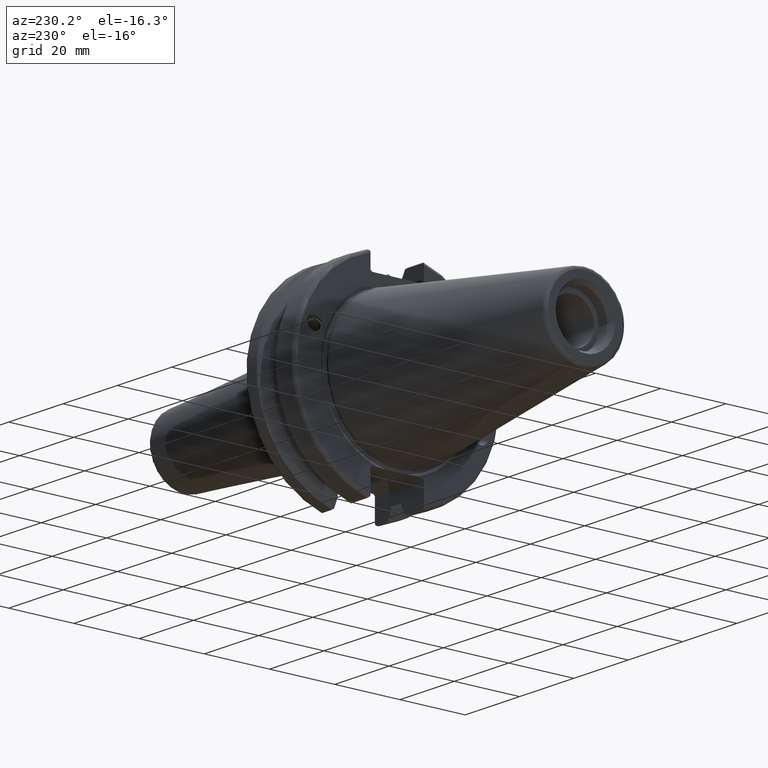
[diagram: clean part render]
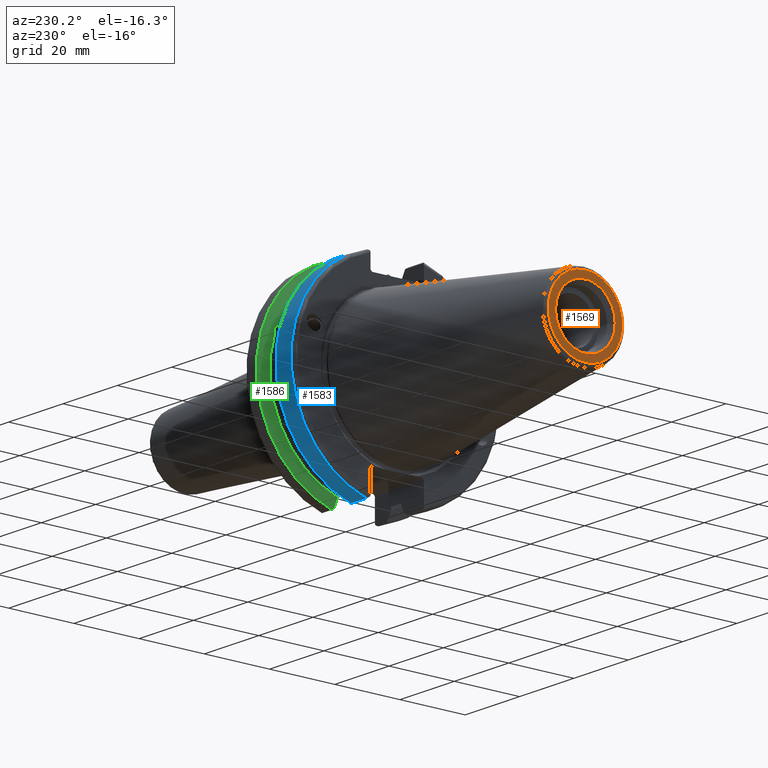
[diagram: same view with three faces highlighted in distinct colors, each labeled with its STEP entity id]
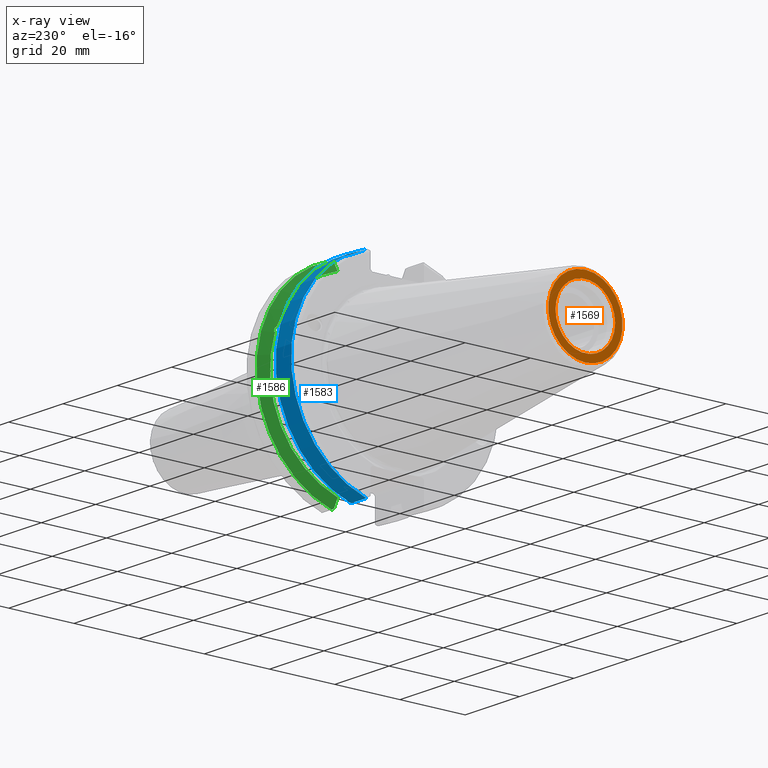
[diagram: x-ray of the same camera — body ghosted, the three highlighted faces saturated]
A machine part, auxiliary view with three faces highlighted in distinct colors.
The next image is the same camera in x-ray (body ghosted, the three faces saturated) — at least one of them is partly hidden behind the body in this view.
Their STEP definitions:

[orange] entity #1569 — the highlighted planar face has unit normal (-1, 0, 0).
#122=FACE_BOUND('',#527,.T.);
#146=PLANE('',#1755);
#425=FACE_OUTER_BOUND('',#526,.T.);
#526=EDGE_LOOP('',(#1351));
#527=EDGE_LOOP('',(#1352));
#619=CIRCLE('',#1754,11.4071305970304);
#620=CIRCLE('',#1756,9.15);
#776=VERTEX_POINT('',#2953);
#777=VERTEX_POINT('',#2957);
#986=EDGE_CURVE('',#776,#776,#619,.T.);
#987=EDGE_CURVE('',#777,#777,#620,.T.);
#1351=ORIENTED_EDGE('',*,*,#986,.F.);
#1352=ORIENTED_EDGE('',*,*,#987,.T.);
#1569=ADVANCED_FACE('',(#425,#122),#146,.T.);
#1754=AXIS2_PLACEMENT_3D('',#2955,#2140,#2141);
#1755=AXIS2_PLACEMENT_3D('',#2956,#2142,#2143);
#1756=AXIS2_PLACEMENT_3D('',#2958,#2144,#2145);
#2140=DIRECTION('center_axis',(1.,0.,0.));
#2141=DIRECTION('ref_axis',(0.,-1.,1.83697019872103E-16));
#2142=DIRECTION('center_axis',(-1.,0.,0.));
#2143=DIRECTION('ref_axis',(0.,0.,1.));
#2144=DIRECTION('center_axis',(1.,0.,0.));
#2145=DIRECTION('ref_axis',(0.,0.,-1.));
#2953=CARTESIAN_POINT('',(-68.25,-1.39697059731091E-15,11.4071305970304));
#2955=CARTESIAN_POINT('Origin',(-68.25,0.,0.));
#2956=CARTESIAN_POINT('Origin',(-68.25,12.271875,0.));
#2957=CARTESIAN_POINT('',(-68.25,-9.15,-1.12055182121983E-15));
#2958=CARTESIAN_POINT('Origin',(-68.25,0.,0.));

[blue] entity #1583 — the highlighted cylindrical surface (partial cylindrical patch) has radius 31.75 mm, axis along (1, 0, 0).
#104=CYLINDRICAL_SURFACE('',#1772,31.75);
#237=LINE('',#2947,#333);
#253=LINE('',#3009,#349);
#333=VECTOR('',#2131,10.);
#349=VECTOR('',#2191,10.);
#439=FACE_OUTER_BOUND('',#541,.T.);
#541=EDGE_LOOP('',(#1418,#1419,#1420,#1421));
#599=CIRCLE('',#1710,31.75);
#613=CIRCLE('',#1745,31.75);
#722=VERTEX_POINT('',#2682);
#723=VERTEX_POINT('',#2686);
#764=VERTEX_POINT('',#2902);
#765=VERTEX_POINT('',#2911);
#906=EDGE_CURVE('',#722,#723,#599,.T.);
#969=EDGE_CURVE('',#764,#765,#613,.T.);
#982=EDGE_CURVE('',#765,#722,#237,.T.);
#1009=EDGE_CURVE('',#723,#764,#253,.T.);
#1418=ORIENTED_EDGE('',*,*,#969,.F.);
#1419=ORIENTED_EDGE('',*,*,#1009,.F.);
#1420=ORIENTED_EDGE('',*,*,#906,.F.);
#1421=ORIENTED_EDGE('',*,*,#982,.F.);
#1583=ADVANCED_FACE('',(#439),#104,.T.);
#1710=AXIS2_PLACEMENT_3D('',#2687,#2017,#2018);
#1745=AXIS2_PLACEMENT_3D('',#2912,#2113,#2114);
#1772=AXIS2_PLACEMENT_3D('',#3010,#2192,#2193);
#2017=DIRECTION('center_axis',(1.,0.,0.));
#2018=DIRECTION('ref_axis',(0.,0.,-1.));
#2113=DIRECTION('center_axis',(-1.,0.,0.));
#2114=DIRECTION('ref_axis',(0.,1.,1.60812264967664E-16));
#2131=DIRECTION('',(1.,0.,0.));
#2191=DIRECTION('',(-1.,0.,0.));
#2192=DIRECTION('center_axis',(1.,0.,0.));
#2193=DIRECTION('ref_axis',(0.,1.,0.));
#2682=CARTESIAN_POINT('',(7.64983323092436,8.67204822802685,-30.5427254764662));
#2686=CARTESIAN_POINT('',(7.64983323092436,8.67204822802685,30.5427254764662));
#2687=CARTESIAN_POINT('Origin',(7.64983323092436,0.,0.));
#2902=CARTESIAN_POINT('',(2.,8.67204822802685,30.5427254764662));
#2911=CARTESIAN_POINT('',(2.,8.67204822802685,-30.5427254764662));
#2912=CARTESIAN_POINT('Origin',(2.,0.,0.));
#2947=CARTESIAN_POINT('',(4.32491661546218,8.67204822802685,-30.5427254764662));
#3009=CARTESIAN_POINT('',(4.32491661546218,8.67204822802685,30.5427254764662));
#3010=CARTESIAN_POINT('Origin',(4.32491661546218,0.,0.));

[green] entity #1586 — the highlighted conical surface has half-angle 60 deg.
#23=(
BOUNDED_CURVE()
B_SPLINE_CURVE(2,(#2769,#2770,#2771),.UNSPECIFIED.,.F.,.F.)
B_SPLINE_CURVE_WITH_KNOTS((3,3),(0.329353533631205,0.393258405001023),
 .UNSPECIFIED.)
CURVE()
GEOMETRIC_REPRESENTATION_ITEM()
RATIONAL_B_SPLINE_CURVE((1.00047644010577,1.00028444218286,1.))
REPRESENTATION_ITEM('')
);
#24=(
BOUNDED_CURVE()
B_SPLINE_CURVE(2,(#2786,#2787,#2788),.UNSPECIFIED.,.F.,.F.)
B_SPLINE_CURVE_WITH_KNOTS((3,3),(0.0550586467390279,0.331607789535849),
 .UNSPECIFIED.)
CURVE()
GEOMETRIC_REPRESENTATION_ITEM()
RATIONAL_B_SPLINE_CURVE((1.00031614445116,1.00095203904229,1.))
REPRESENTATION_ITEM('')
);
#31=(
BOUNDED_CURVE()
B_SPLINE_CURVE(2,(#2986,#2987,#2988),.UNSPECIFIED.,.F.,.F.)
B_SPLINE_CURVE_WITH_KNOTS((3,3),(0.,0.276549142796813),.UNSPECIFIED.)
CURVE()
GEOMETRIC_REPRESENTATION_ITEM()
RATIONAL_B_SPLINE_CURVE((1.,1.00095203904207,1.00031614445109))
REPRESENTATION_ITEM('')
);
#32=(
BOUNDED_CURVE()
B_SPLINE_CURVE(2,(#3003,#3004,#3005),.UNSPECIFIED.,.F.,.F.)
B_SPLINE_CURVE_WITH_KNOTS((3,3),(0.,0.0639048713675949),.UNSPECIFIED.)
CURVE()
GEOMETRIC_REPRESENTATION_ITEM()
RATIONAL_B_SPLINE_CURVE((1.,1.00028444218283,1.00047644010573))
REPRESENTATION_ITEM('')
);
#60=B_SPLINE_CURVE_WITH_KNOTS('',3,(#2604,#2605,#2606,#2607,#2608,#2609,
#2610,#2611),.UNSPECIFIED.,.F.,.F.,(4,2,2,4),(0.451995700189027,0.464547828547661,
0.504528771685166,0.544509714822671),.UNSPECIFIED.);
#64=B_SPLINE_CURVE_WITH_KNOTS('',3,(#2666,#2667,#2668,#2669,#2670,#2671,
#2672,#2673),.UNSPECIFIED.,.F.,.F.,(4,2,2,4),(0.544509714822671,0.584490657960176,
0.624471601097681,0.637023729456316),.UNSPECIFIED.);
#365=CONICAL_SURFACE('',#1777,30.3546886482472,1.0471975511966);
#442=FACE_OUTER_BOUND('',#544,.T.);
#544=EDGE_LOOP('',(#1429,#1430,#1431,#1432,#1433,#1434,#1435,#1436,#1437));
#603=CIRCLE('',#1717,28.9593772964944);
#622=CIRCLE('',#1770,31.75);
#625=CIRCLE('',#1778,28.9593772964944);
#711=VERTEX_POINT('',#2601);
#712=VERTEX_POINT('',#2603);
#719=VERTEX_POINT('',#2664);
#728=VERTEX_POINT('',#2706);
#739=VERTEX_POINT('',#2766);
#740=VERTEX_POINT('',#2768);
#781=VERTEX_POINT('',#2983);
#782=VERTEX_POINT('',#2985);
#785=VERTEX_POINT('',#3001);
#894=EDGE_CURVE('',#712,#711,#60,.T.);
#902=EDGE_CURVE('',#711,#719,#64,.T.);
#914=EDGE_CURVE('',#728,#712,#603,.T.);
#932=EDGE_CURVE('',#739,#740,#23,.T.);
#938=EDGE_CURVE('',#739,#728,#24,.T.);
#999=EDGE_CURVE('',#782,#781,#31,.T.);
#1007=EDGE_CURVE('',#785,#781,#32,.T.);
#1008=EDGE_CURVE('',#740,#785,#622,.T.);
#1014=EDGE_CURVE('',#719,#782,#625,.T.);
#1429=ORIENTED_EDGE('',*,*,#894,.T.);
#1430=ORIENTED_EDGE('',*,*,#902,.T.);
#1431=ORIENTED_EDGE('',*,*,#1014,.T.);
#1432=ORIENTED_EDGE('',*,*,#999,.T.);
#1433=ORIENTED_EDGE('',*,*,#1007,.F.);
#1434=ORIENTED_EDGE('',*,*,#1008,.F.);
#1435=ORIENTED_EDGE('',*,*,#932,.F.);
#1436=ORIENTED_EDGE('',*,*,#938,.T.);
#1437=ORIENTED_EDGE('',*,*,#914,.T.);
#1586=ADVANCED_FACE('',(#442),#365,.T.);
#1717=AXIS2_PLACEMENT_3D('',#2707,#2033,#2034);
#1770=AXIS2_PLACEMENT_3D('',#3007,#2187,#2188);
#1777=AXIS2_PLACEMENT_3D('',#3020,#2204,#2205);
#1778=AXIS2_PLACEMENT_3D('',#3021,#2206,#2207);
#2033=DIRECTION('center_axis',(1.,0.,0.));
#2034=DIRECTION('ref_axis',(0.,0.,-1.));
#2187=DIRECTION('center_axis',(1.,0.,0.));
#2188=DIRECTION('ref_axis',(0.,0.,-1.));
#2204=DIRECTION('center_axis',(1.,0.,0.));
#2205=DIRECTION('ref_axis',(0.,1.,0.));
#2206=DIRECTION('center_axis',(1.,0.,0.));
#2207=DIRECTION('ref_axis',(0.,0.,-1.));
#2601=CARTESIAN_POINT('',(13.276,27.51401829017,10.0142836826778));
#2603=CARTESIAN_POINT('',(13.091,27.4956274489925,9.09043478536249));
#2604=CARTESIAN_POINT('Ctrl Pts',(13.091,27.4956274489925,9.09043478536249));
#2605=CARTESIAN_POINT('Ctrl Pts',(13.1051204071996,27.5087667900418,9.1286059707622));
#2606=CARTESIAN_POINT('Ctrl Pts',(13.1185929817857,27.5206055003512,9.16696618806879));
#2607=CARTESIAN_POINT('Ctrl Pts',(13.171981441159,27.5642934663232,9.32791534028656));
#2608=CARTESIAN_POINT('Ctrl Pts',(13.2101197084175,27.5867382255984,9.46717946402648));
#2609=CARTESIAN_POINT('Ctrl Pts',(13.2623106446058,27.5847569104122,9.74771639360672));
#2610=CARTESIAN_POINT('Ctrl Pts',(13.276,27.559599249844,9.8890510252165));
#2611=CARTESIAN_POINT('Ctrl Pts',(13.276,27.51401829017,10.0142836826778));
#2664=CARTESIAN_POINT('',(13.091,26.9060914640648,10.7101715919071));
#2666=CARTESIAN_POINT('Ctrl Pts',(13.276,27.51401829017,10.0142836826778));
#2667=CARTESIAN_POINT('Ctrl Pts',(13.276,27.4684373304961,10.139516340139));
#2668=CARTESIAN_POINT('Ctrl Pts',(13.2623106446058,27.3968610665578,10.2639559818059));
#2669=CARTESIAN_POINT('Ctrl Pts',(13.2101197084175,27.2180531796526,10.4801333026531));
#2670=CARTESIAN_POINT('Ctrl Pts',(13.171981441159,27.1113422433189,10.5723885976054));
#2671=CARTESIAN_POINT('Ctrl Pts',(13.1185929817857,26.9744191989197,10.6676007180673));
#2672=CARTESIAN_POINT('Ctrl Pts',(13.1051204071996,26.9406927482839,10.6893765730703));
#2673=CARTESIAN_POINT('Ctrl Pts',(13.091,26.9060914640648,10.7101715919071));
#2706=CARTESIAN_POINT('',(13.091,8.19,-27.7771386827498));
#2707=CARTESIAN_POINT('Origin',(13.091,0.,0.));
#2766=CARTESIAN_POINT('',(14.4234146964874,8.19,-30.1755016258903));
#2768=CARTESIAN_POINT('',(14.7021667690756,8.67204822802685,-30.5427254764662));
#2769=CARTESIAN_POINT('Ctrl Pts',(14.4234146964874,8.19,-30.1755016258903));
#2770=CARTESIAN_POINT('Ctrl Pts',(14.5611085187884,8.42917748263465,-30.3577067892692));
#2771=CARTESIAN_POINT('Ctrl Pts',(14.7021667690756,8.67204822802686,-30.5427254764662));
#2786=CARTESIAN_POINT('Ctrl Pts',(14.4234146964874,8.19,-30.1755016258903));
#2787=CARTESIAN_POINT('Ctrl Pts',(13.7296364384736,8.19,-28.9303689539661));
#2788=CARTESIAN_POINT('Ctrl Pts',(13.091,8.19,-27.7771386827498));
#2983=CARTESIAN_POINT('',(14.4234146964874,8.19,30.1755016258903));
#2985=CARTESIAN_POINT('',(13.091,8.19,27.7771386827498));
#2986=CARTESIAN_POINT('Ctrl Pts',(13.091,8.19,27.7771386827498));
#2987=CARTESIAN_POINT('Ctrl Pts',(13.7296364384736,8.19,28.930368953966));
#2988=CARTESIAN_POINT('Ctrl Pts',(14.4234146964874,8.19,30.1755016258903));
#3001=CARTESIAN_POINT('',(14.7021667690756,8.67204822802685,30.5427254764662));
#3003=CARTESIAN_POINT('Ctrl Pts',(14.7021667690756,8.67204822802686,30.5427254764662));
#3004=CARTESIAN_POINT('Ctrl Pts',(14.5611085187837,8.42917748262646,30.357706789263));
#3005=CARTESIAN_POINT('Ctrl Pts',(14.4234146964874,8.19,30.1755016258903));
#3007=CARTESIAN_POINT('Origin',(14.7021667690756,0.,0.));
#3020=CARTESIAN_POINT('Origin',(13.8965833845378,0.,0.));
#3021=CARTESIAN_POINT('Origin',(13.091,0.,0.));